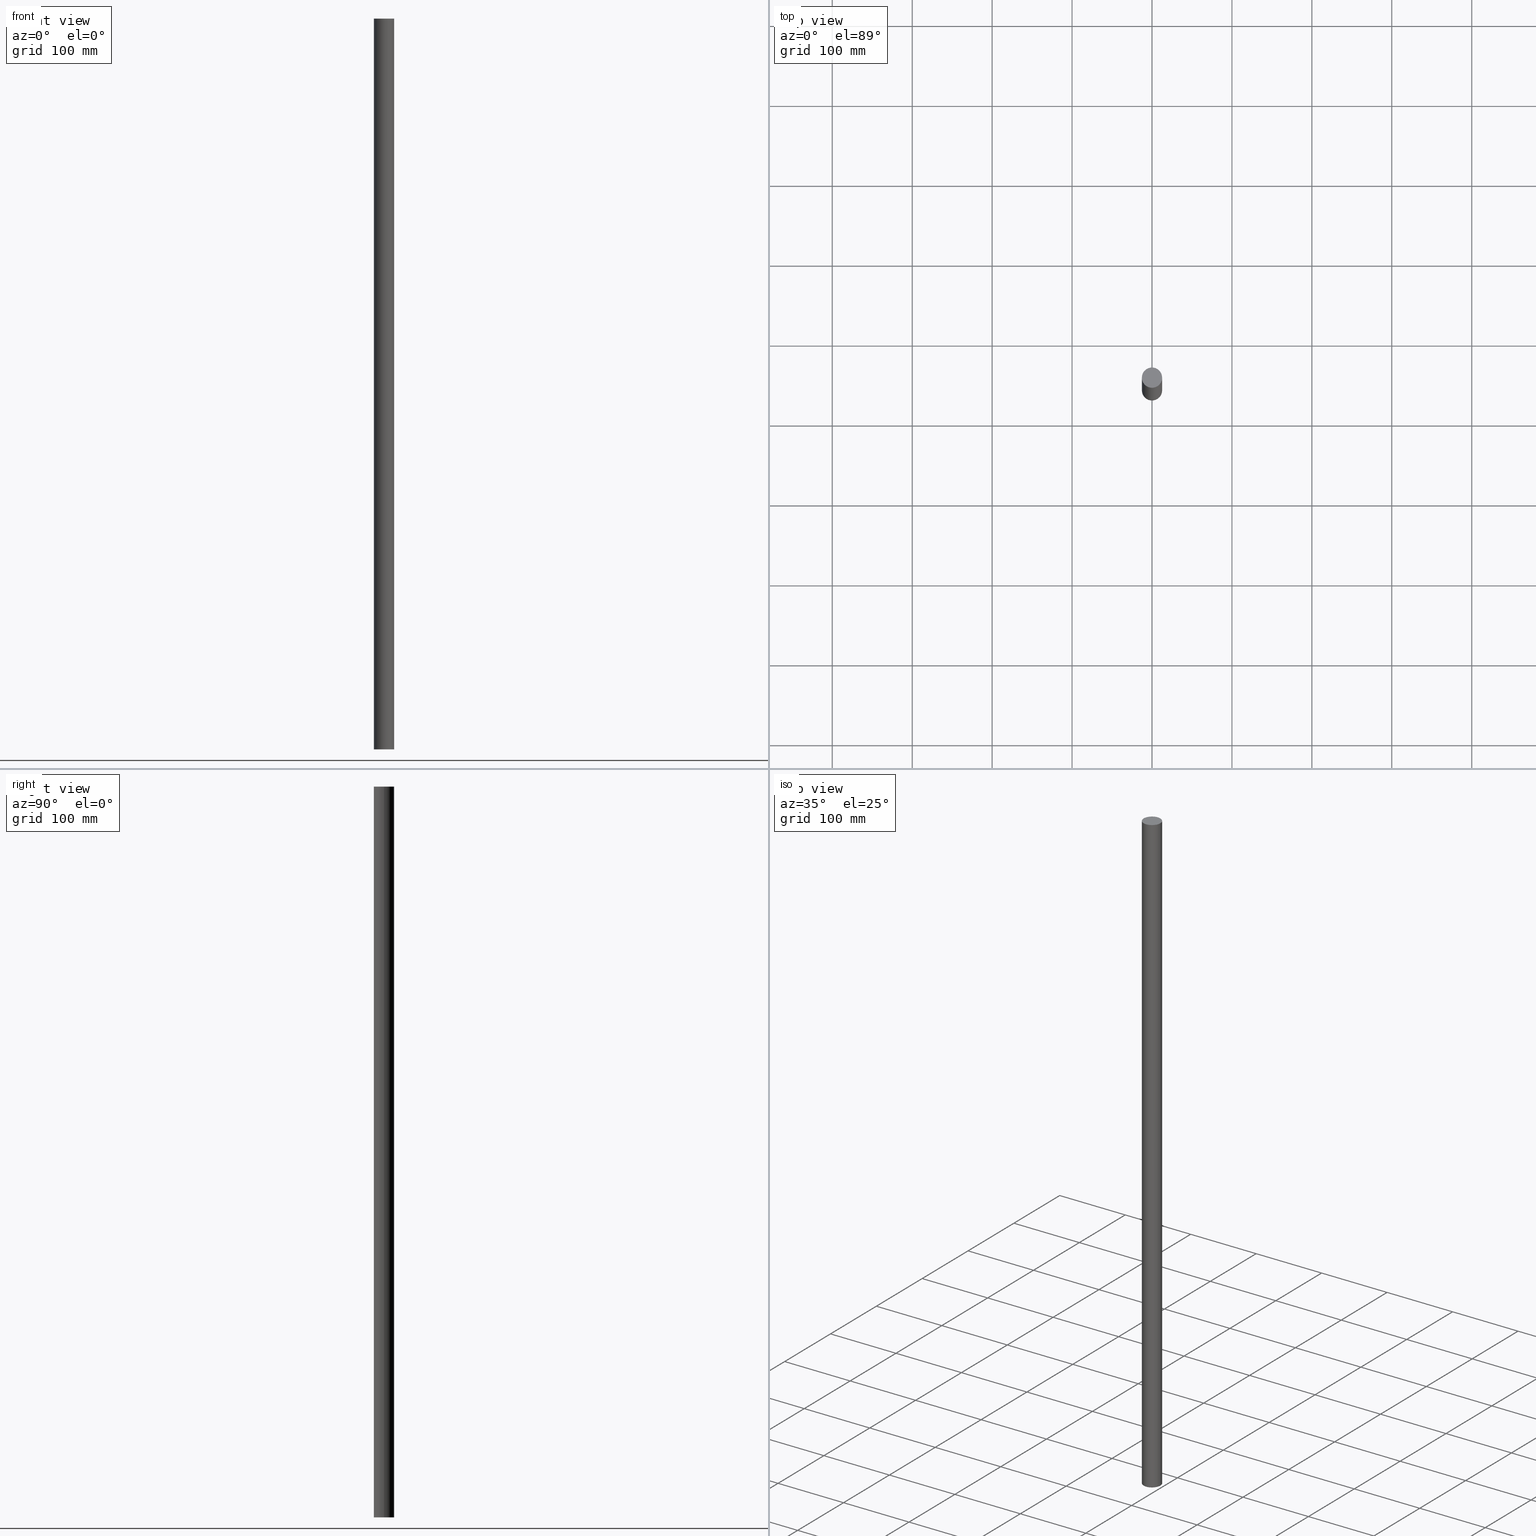
[diagram: canonical four-view strip — front | top / right | iso, engineering-drawing reading convention]
A machine part, canonical four-view strip (front | top / right | iso — engineering-drawing reading convention). The complete STEP part file that produces these views, byte-faithful:
ISO-10303-21;
HEADER;
FILE_DESCRIPTION (( 'STEP AP214' ),
    '1' );
FILE_NAME ('ShaftRailAssembly_03785CEBE2.step',
    '2021-12-06T19:20:29',
    ( 'localadmin' ),
    ( 'BOXX Technologies, Inc.' ),
    'SwSTEP 2.0',
    'SolidWorks 2019',
    '' );
FILE_SCHEMA (( 'AUTOMOTIVE_DESIGN' ));
ENDSEC;

DATA;
#1 = PRESENTATION_LAYER_ASSIGNMENT (  '', '', ( #141 ) ) ;
#2 = VERTEX_POINT ( 'NONE', #209 ) ;
#3 = UNCERTAINTY_MEASURE_WITH_UNIT (LENGTH_MEASURE( 1.000000000000000082E-05 ), #237, 'distance_accuracy_value', 'NONE');
#4 = PRODUCT_DEFINITION_SHAPE ( 'NONE', 'NONE',  #276 ) ;
#5 = COLOUR_RGB ( '',0.7764705882352941346, 0.7764705882352941346, 0.8156862745098039102 ) ;
#6 = DIRECTION ( 'NONE',  ( 1.000000000000000000, 0.000000000000000000, 0.000000000000000000 ) ) ;
#7 = PRODUCT_DEFINITION_CONTEXT ( 'detailed design', #171, 'design' ) ;
#8 = APPLICATION_PROTOCOL_DEFINITION ( 'draft international standard', 'automotive_design', 1998, #171 ) ;
#9 =( NAMED_UNIT ( * ) PLANE_ANGLE_UNIT ( ) SI_UNIT ( $, .RADIAN. ) );
#10 = DIRECTION ( 'NONE',  ( 0.000000000000000000, 0.000000000000000000, 1.000000000000000000 ) ) ;
#11 = DIMENSIONAL_EXPONENTS ( 1.000000000000000000, 0.000000000000000000, 0.000000000000000000, 0.000000000000000000, 0.000000000000000000, 0.000000000000000000, 0.000000000000000000 ) ;
#12 =( CONVERSION_BASED_UNIT ( 'INCH', #221 ) LENGTH_UNIT ( ) NAMED_UNIT ( #11 ) );
#13 = SURFACE_SIDE_STYLE ('',( #224 ) ) ;
#14 = AXIS2_PLACEMENT_3D ( 'NONE', #111, #67, #242 ) ;
#15 = CIRCLE ( 'NONE', #72, 0.5000000000000000000 ) ;
#16 = LINE ( 'NONE', #99, #96 ) ;
#17 = FILL_AREA_STYLE_COLOUR ( '', #258 ) ;
#18 = LINE ( 'NONE', #182, #85 ) ;
#19 =( CONVERSION_BASED_UNIT ( 'INCH', #119 ) LENGTH_UNIT ( ) NAMED_UNIT ( #159 ) );
#20 =( LENGTH_UNIT ( ) NAMED_UNIT ( * ) SI_UNIT ( $, .METRE. ) );
#21 =( GEOMETRIC_REPRESENTATION_CONTEXT ( 3 ) GLOBAL_UNCERTAINTY_ASSIGNED_CONTEXT ( ( #25 ) ) GLOBAL_UNIT_ASSIGNED_CONTEXT ( ( #216, #243, #126 ) ) REPRESENTATION_CONTEXT ( 'NONE', 'WORKASPACE' ) );
#22 = EDGE_LOOP ( 'NONE', ( #121, #261, #263, #190 ) ) ;
#23 = EDGE_CURVE ( 'NONE', #2, #41, #18, .T. ) ;
#24 = UNCERTAINTY_MEASURE_WITH_UNIT (LENGTH_MEASURE( 1.000000000000000082E-05 ), #19, 'distance_accuracy_value', 'NONE');
#25 = UNCERTAINTY_MEASURE_WITH_UNIT (LENGTH_MEASURE( 1.000000000000000082E-05 ), #216, 'distance_accuracy_value', 'NONE');
#26 = COLOUR_RGB ( '',0.8980392156862745390, 0.9176470588235293713, 0.9294117647058823817 ) ;
#27 = PRODUCT ( '0Y2AZEdqse_CADModel_0', '0Y2AZEdqse_CADModel_0', '', ( #179 ) ) ;
#28 = LENGTH_MEASURE_WITH_UNIT ( LENGTH_MEASURE( 0.02539999999999999897 ), #251 );
#29 = SHAPE_DEFINITION_REPRESENTATION ( #146, #168 ) ;
#30 = FILL_AREA_STYLE ('',( #177 ) ) ;
#31 = CARTESIAN_POINT ( 'NONE',  ( 0.000000000000000000, 1.750000000000000000, -36.00000000000000000 ) ) ;
#32 = DIRECTION ( 'NONE',  ( 1.000000000000000000, 0.000000000000000000, 0.000000000000000000 ) ) ;
#33 = MECHANICAL_DESIGN_GEOMETRIC_PRESENTATION_REPRESENTATION (  '', ( #100 ), #21 ) ;
#34 = SURFACE_STYLE_USAGE ( .BOTH. , #13 ) ;
#35 = FILL_AREA_STYLE_COLOUR ( '', #158 ) ;
#36 = CLOSED_SHELL ( 'NONE', ( #267, #246, #80, #40 ) ) ;
#37 = SURFACE_STYLE_USAGE ( .BOTH. , #273 ) ;
#38 =( GEOMETRIC_REPRESENTATION_CONTEXT ( 3 ) GLOBAL_UNCERTAINTY_ASSIGNED_CONTEXT ( ( #3 ) ) GLOBAL_UNIT_ASSIGNED_CONTEXT ( ( #237, #106, #108 ) ) REPRESENTATION_CONTEXT ( 'NONE', 'WORKASPACE' ) );
#39 = SHAPE_REPRESENTATION ( 'ShaftRailAssembly_03785CEBE2', ( #240, #229 ), #38 ) ;
#40 = ADVANCED_FACE ( 'NONE', ( #231 ), #183, .T. ) ;
#41 = VERTEX_POINT ( 'NONE', #249 ) ;
#42 = SURFACE_STYLE_FILL_AREA ( #187 ) ;
#43 = COLOUR_RGB ( '',0.7764705882352941346, 0.7764705882352941346, 0.8156862745098039102 ) ;
#44 = APPLICATION_CONTEXT ( 'automotive_design' ) ;
#45 = EDGE_LOOP ( 'NONE', ( #236, #234 ) ) ;
#46 = DIRECTION ( 'NONE',  ( 1.000000000000000000, 0.000000000000000000, 0.000000000000000000 ) ) ;
#47 = DIRECTION ( 'NONE',  ( 0.000000000000000000, 0.000000000000000000, 1.000000000000000000 ) ) ;
#48 = ADVANCED_BREP_SHAPE_REPRESENTATION ( '', ( #142, #192 ), #109 ) ;
#49 = UNCERTAINTY_MEASURE_WITH_UNIT (LENGTH_MEASURE( 1.000000000000000082E-05 ), #265, 'distance_accuracy_value', 'NONE');
#50 = PRESENTATION_LAYER_ASSIGNMENT (  '', '', ( #176 ) ) ;
#51 = AXIS2_PLACEMENT_3D ( 'NONE', #180, #195, #129 ) ;
#52 =( NAMED_UNIT ( * ) SI_UNIT ( $, .STERADIAN. ) SOLID_ANGLE_UNIT ( ) );
#53 = CONTEXT_DEPENDENT_SHAPE_REPRESENTATION ( #259, #4 ) ;
#54 = CARTESIAN_POINT ( 'NONE',  ( 0.000000000000000000, 1.750000000000000000, -36.00000000000000000 ) ) ;
#55 =( CONVERSION_BASED_UNIT ( 'INCH', #252 ) LENGTH_UNIT ( ) NAMED_UNIT ( #164 ) );
#56 = CARTESIAN_POINT ( 'NONE',  ( 0.000000000000000000, 1.750000000000000000, 0.000000000000000000 ) ) ;
#57 = FILL_AREA_STYLE_COLOUR ( '', #43 ) ;
#58 = CIRCLE ( 'NONE', #253, 0.5000000000000000000 ) ;
#59 = SURFACE_STYLE_FILL_AREA ( #247 ) ;
#60 = PRESENTATION_LAYER_ASSIGNMENT (  '', '', ( #174 ) ) ;
#61 =( NAMED_UNIT ( * ) SI_UNIT ( $, .STERADIAN. ) SOLID_ANGLE_UNIT ( ) );
#62 = MECHANICAL_DESIGN_GEOMETRIC_PRESENTATION_REPRESENTATION (  '', ( #176 ), #213 ) ;
#63 = AXIS2_PLACEMENT_3D ( 'NONE', #56, #178, #97 ) ;
#64 = CARTESIAN_POINT ( 'NONE',  ( 0.000000000000000000, 0.000000000000000000, 0.000000000000000000 ) ) ;
#65 =( NAMED_UNIT ( * ) PLANE_ANGLE_UNIT ( ) SI_UNIT ( $, .RADIAN. ) );
#66 = MECHANICAL_DESIGN_GEOMETRIC_PRESENTATION_REPRESENTATION (  '', ( #141 ), #117 ) ;
#67 = DIRECTION ( 'NONE',  ( 0.000000000000000000, 0.000000000000000000, 1.000000000000000000 ) ) ;
#68 = CARTESIAN_POINT ( 'NONE',  ( 0.000000000000000000, 1.750000000000000000, -36.00000000000000000 ) ) ;
#69 = DIRECTION ( 'NONE',  ( 0.000000000000000000, 0.000000000000000000, 1.000000000000000000 ) ) ;
#70 = PRODUCT_DEFINITION_SHAPE ( 'NONE', 'NONE',  #77 ) ;
#71 = AXIS2_PLACEMENT_3D ( 'NONE', #54, #10, #128 ) ;
#72 = AXIS2_PLACEMENT_3D ( 'NONE', #131, #69, #151 ) ;
#73 = DIRECTION ( 'NONE',  ( 1.000000000000000000, 0.000000000000000000, 0.000000000000000000 ) ) ;
#74 = PRESENTATION_STYLE_ASSIGNMENT (( #34 ) ) ;
#75 = CARTESIAN_POINT ( 'NONE',  ( 0.000000000000000000, 1.750000000000000000, 0.000000000000000000 ) ) ;
#76 = PRESENTATION_STYLE_ASSIGNMENT (( #225 ) ) ;
#77 = PRODUCT_DEFINITION ( 'UNKNOWN', '', #212, #86 ) ;
#78 =( NAMED_UNIT ( * ) SI_UNIT ( $, .STERADIAN. ) SOLID_ANGLE_UNIT ( ) );
#79 = CIRCLE ( 'NONE', #266, 0.5000000000000000000 ) ;
#80 = ADVANCED_FACE ( 'NONE', ( #270 ), #255, .F. ) ;
#81 = UNCERTAINTY_MEASURE_WITH_UNIT (LENGTH_MEASURE( 1.000000000000000082E-05 ), #55, 'distance_accuracy_value', 'NONE');
#82 = ORIENTED_EDGE ( 'NONE', *, *, #118, .T. ) ;
#83 = ORIENTED_EDGE ( 'NONE', *, *, #205, .F. ) ;
#84 = SURFACE_STYLE_USAGE ( .BOTH. , #122 ) ;
#85 = VECTOR ( 'NONE', #203, 39.37007874015748143 ) ;
#86 = PRODUCT_DEFINITION_CONTEXT ( 'detailed design', #235, 'design' ) ;
#87 = APPLICATION_CONTEXT ( 'automotive_design' ) ;
#88 = EDGE_CURVE ( 'NONE', #41, #137, #15, .T. ) ;
#89 = ITEM_DEFINED_TRANSFORMATION ( 'NONE', 'NONE', #229,  #192 ) ;
#90 = APPLICATION_PROTOCOL_DEFINITION ( 'draft international standard', 'automotive_design', 1998, #204 ) ;
#91 = PRODUCT_DEFINITION_FORMATION_WITH_SPECIFIED_SOURCE ( 'ANY', '', #254, .NOT_KNOWN. ) ;
#92 = SURFACE_STYLE_FILL_AREA ( #30 ) ;
#93 =( NAMED_UNIT ( * ) PLANE_ANGLE_UNIT ( ) SI_UNIT ( $, .RADIAN. ) );
#94 = DIRECTION ( 'NONE',  ( 0.000000000000000000, 0.000000000000000000, 1.000000000000000000 ) ) ;
#95 =( NAMED_UNIT ( * ) PLANE_ANGLE_UNIT ( ) SI_UNIT ( $, .RADIAN. ) );
#96 = VECTOR ( 'NONE', #268, 39.37007874015748143 ) ;
#97 = DIRECTION ( 'NONE',  ( 1.000000000000000000, 0.000000000000000000, -0.000000000000000000 ) ) ;
#98 = DIRECTION ( 'NONE',  ( 1.000000000000000000, 0.000000000000000000, 0.000000000000000000 ) ) ;
#99 = CARTESIAN_POINT ( 'NONE',  ( -0.5000000000000000000, 1.750000000000000000, -36.00000000000000000 ) ) ;
#100 = STYLED_ITEM ( 'NONE', ( #143 ), #267 ) ;
#101 = LENGTH_MEASURE_WITH_UNIT ( LENGTH_MEASURE( 0.02539999999999999897 ), #124 );
#102 = APPLICATION_CONTEXT ( 'automotive_design' ) ;
#103 = UNCERTAINTY_MEASURE_WITH_UNIT (LENGTH_MEASURE( 1.000000000000000082E-05 ), #12, 'distance_accuracy_value', 'NONE');
#104 = PRODUCT_RELATED_PRODUCT_CATEGORY ( 'part', '', ( #271 ) ) ;
#105 = EDGE_LOOP ( 'NONE', ( #162, #82, #207, #184 ) ) ;
#106 =( NAMED_UNIT ( * ) PLANE_ANGLE_UNIT ( ) SI_UNIT ( $, .RADIAN. ) );
#107 = COLOUR_RGB ( '',0.7764705882352941346, 0.7764705882352941346, 0.8156862745098039102 ) ;
#108 =( NAMED_UNIT ( * ) SI_UNIT ( $, .STERADIAN. ) SOLID_ANGLE_UNIT ( ) );
#109 =( GEOMETRIC_REPRESENTATION_CONTEXT ( 3 ) GLOBAL_UNCERTAINTY_ASSIGNED_CONTEXT ( ( #103 ) ) GLOBAL_UNIT_ASSIGNED_CONTEXT ( ( #12, #95, #78 ) ) REPRESENTATION_CONTEXT ( 'NONE', 'WORKASPACE' ) );
#110 = SURFACE_SIDE_STYLE ('',( #92 ) ) ;
#111 = CARTESIAN_POINT ( 'NONE',  ( 0.000000000000000000, 0.000000000000000000, 0.000000000000000000 ) ) ;
#112 = APPLICATION_PROTOCOL_DEFINITION ( 'draft international standard', 'automotive_design', 1998, #102 ) ;
#113 =( LENGTH_UNIT ( ) NAMED_UNIT ( * ) SI_UNIT ( $, .METRE. ) );
#114 = FACE_OUTER_BOUND ( 'NONE', #22, .T. ) ;
#115 = STYLED_ITEM ( 'NONE', ( #175 ), #246 ) ;
#116 = SURFACE_SIDE_STYLE ('',( #154 ) ) ;
#117 =( GEOMETRIC_REPRESENTATION_CONTEXT ( 3 ) GLOBAL_UNCERTAINTY_ASSIGNED_CONTEXT ( ( #81 ) ) GLOBAL_UNIT_ASSIGNED_CONTEXT ( ( #55, #93, #222 ) ) REPRESENTATION_CONTEXT ( 'NONE', 'WORKASPACE' ) );
#118 = EDGE_CURVE ( 'NONE', #123, #137, #16, .T. ) ;
#119 = LENGTH_MEASURE_WITH_UNIT ( LENGTH_MEASURE( 0.02539999999999999897 ), #133 );
#120 = DIRECTION ( 'NONE',  ( 1.000000000000000000, 0.000000000000000000, 0.000000000000000000 ) ) ;
#121 = ORIENTED_EDGE ( 'NONE', *, *, #118, .F. ) ;
#122 = SURFACE_SIDE_STYLE ('',( #42 ) ) ;
#123 = VERTEX_POINT ( 'NONE', #147 ) ;
#124 =( LENGTH_UNIT ( ) NAMED_UNIT ( * ) SI_UNIT ( $, .METRE. ) );
#125 = PRODUCT_DEFINITION_FORMATION_WITH_SPECIFIED_SOURCE ( 'ANY', '', #27, .NOT_KNOWN. ) ;
#126 =( NAMED_UNIT ( * ) SI_UNIT ( $, .STERADIAN. ) SOLID_ANGLE_UNIT ( ) );
#127 = CARTESIAN_POINT ( 'NONE',  ( 0.000000000000000000, 0.000000000000000000, 0.000000000000000000 ) ) ;
#128 = DIRECTION ( 'NONE',  ( 1.000000000000000000, 0.000000000000000000, 0.000000000000000000 ) ) ;
#129 = DIRECTION ( 'NONE',  ( 1.000000000000000000, 0.000000000000000000, -0.000000000000000000 ) ) ;
#130 =( NAMED_UNIT ( * ) SI_UNIT ( $, .STERADIAN. ) SOLID_ANGLE_UNIT ( ) );
#131 = CARTESIAN_POINT ( 'NONE',  ( 0.000000000000000000, 1.750000000000000000, 0.000000000000000000 ) ) ;
#132 = LENGTH_MEASURE_WITH_UNIT ( LENGTH_MEASURE( 0.02539999999999999897 ), #219 );
#133 =( LENGTH_UNIT ( ) NAMED_UNIT ( * ) SI_UNIT ( $, .METRE. ) );
#134 = PRODUCT_RELATED_PRODUCT_CATEGORY ( 'part', '', ( #254 ) ) ;
#135 = FILL_AREA_STYLE_COLOUR ( '', #26 ) ;
#136 = DIMENSIONAL_EXPONENTS ( 1.000000000000000000, 0.000000000000000000, 0.000000000000000000, 0.000000000000000000, 0.000000000000000000, 0.000000000000000000, 0.000000000000000000 ) ;
#137 = VERTEX_POINT ( 'NONE', #256 ) ;
#138 = DIRECTION ( 'NONE',  ( 0.000000000000000000, 0.000000000000000000, 1.000000000000000000 ) ) ;
#139 = EDGE_LOOP ( 'NONE', ( #83, #160 ) ) ;
#140 = AXIS2_PLACEMENT_3D ( 'NONE', #68, #145, #6 ) ;
#141 = STYLED_ITEM ( 'NONE', ( #74 ), #80 ) ;
#142 = MANIFOLD_SOLID_BREP ( 'S0_a_shaft-1/S0_a_shaft-1-solid1', #36 ) ;
#143 = PRESENTATION_STYLE_ASSIGNMENT (( #245 ) ) ;
#144 = SHAPE_DEFINITION_REPRESENTATION ( #70, #39 ) ;
#145 = DIRECTION ( 'NONE',  ( 0.000000000000000000, 0.000000000000000000, 1.000000000000000000 ) ) ;
#146 = PRODUCT_DEFINITION_SHAPE ( 'NONE', 'NONE',  #170 ) ;
#147 = CARTESIAN_POINT ( 'NONE',  ( -0.5000000000000000000, 1.750000000000000000, -36.00000000000000000 ) ) ;
#148 = LENGTH_MEASURE_WITH_UNIT ( LENGTH_MEASURE( 0.02539999999999999897 ), #150 );
#149 = FILL_AREA_STYLE ('',( #17 ) ) ;
#150 =( LENGTH_UNIT ( ) NAMED_UNIT ( * ) SI_UNIT ( $, .METRE. ) );
#151 = DIRECTION ( 'NONE',  ( 1.000000000000000000, 0.000000000000000000, 0.000000000000000000 ) ) ;
#152 = PRESENTATION_LAYER_ASSIGNMENT (  '', '', ( #100 ) ) ;
#153 =( CONVERSION_BASED_UNIT ( 'INCH', #132 ) LENGTH_UNIT ( ) NAMED_UNIT ( #136 ) );
#154 = SURFACE_STYLE_FILL_AREA ( #269 ) ;
#155 = SURFACE_STYLE_FILL_AREA ( #228 ) ;
#156 = PRESENTATION_STYLE_ASSIGNMENT (( #37 ) ) ;
#157 = AXIS2_PLACEMENT_3D ( 'NONE', #238, #47, #46 ) ;
#158 = COLOUR_RGB ( '',0.8980392156862745390, 0.9176470588235293713, 0.9294117647058823817 ) ;
#159 = DIMENSIONAL_EXPONENTS ( 1.000000000000000000, 0.000000000000000000, 0.000000000000000000, 0.000000000000000000, 0.000000000000000000, 0.000000000000000000, 0.000000000000000000 ) ;
#160 = ORIENTED_EDGE ( 'NONE', *, *, #167, .F. ) ;
#161 = DIRECTION ( 'NONE',  ( 0.000000000000000000, 0.000000000000000000, 1.000000000000000000 ) ) ;
#162 = ORIENTED_EDGE ( 'NONE', *, *, #205, .T. ) ;
#163 = SHAPE_REPRESENTATION_RELATIONSHIP ( 'NONE' , 'NONE' ,  #168, #48 ) ;
#164 = DIMENSIONAL_EXPONENTS ( 1.000000000000000000, 0.000000000000000000, 0.000000000000000000, 0.000000000000000000, 0.000000000000000000, 0.000000000000000000, 0.000000000000000000 ) ;
#165 = PRESENTATION_STYLE_ASSIGNMENT (( #84 ) ) ;
#166 = DIMENSIONAL_EXPONENTS ( 1.000000000000000000, 0.000000000000000000, 0.000000000000000000, 0.000000000000000000, 0.000000000000000000, 0.000000000000000000, 0.000000000000000000 ) ;
#167 = EDGE_CURVE ( 'NONE', #123, #2, #197, .T. ) ;
#168 = SHAPE_REPRESENTATION ( '0Y2AZEdqse_CADModel_0', ( #192 ), #109 ) ;
#169 = AXIS2_PLACEMENT_3D ( 'NONE', #272, #94, #98 ) ;
#170 = PRODUCT_DEFINITION ( 'UNKNOWN', '', #125, #214 ) ;
#171 = APPLICATION_CONTEXT ( 'automotive_design' ) ;
#172 =( CONVERSION_BASED_UNIT ( 'INCH', #148 ) LENGTH_UNIT ( ) NAMED_UNIT ( #232 ) );
#173 = CYLINDRICAL_SURFACE ( 'NONE', #140, 0.5000000000000000000 ) ;
#174 = STYLED_ITEM ( 'NONE', ( #156 ), #40 ) ;
#175 = PRESENTATION_STYLE_ASSIGNMENT (( #198 ) ) ;
#176 = STYLED_ITEM ( 'NONE', ( #165 ), #48 ) ;
#177 = FILL_AREA_STYLE_COLOUR ( '', #5 ) ;
#178 = DIRECTION ( 'NONE',  ( 0.000000000000000000, 0.000000000000000000, 1.000000000000000000 ) ) ;
#179 = PRODUCT_CONTEXT ( 'NONE', #102, 'mechanical' ) ;
#180 = CARTESIAN_POINT ( 'NONE',  ( 0.000000000000000000, 1.750000000000000000, -36.00000000000000000 ) ) ;
#181 = DIRECTION ( 'NONE',  ( 1.000000000000000000, 0.000000000000000000, 0.000000000000000000 ) ) ;
#182 = CARTESIAN_POINT ( 'NONE',  ( 0.5000000000000000000, 1.750000000000000000, -36.00000000000000000 ) ) ;
#183 = PLANE ( 'NONE',  #63 ) ;
#184 = ORIENTED_EDGE ( 'NONE', *, *, #23, .F. ) ;
#185 = MECHANICAL_DESIGN_GEOMETRIC_PRESENTATION_REPRESENTATION (  '', ( #174 ), #241 ) ;
#186 = DIMENSIONAL_EXPONENTS ( 1.000000000000000000, 0.000000000000000000, 0.000000000000000000, 0.000000000000000000, 0.000000000000000000, 0.000000000000000000, 0.000000000000000000 ) ;
#187 = FILL_AREA_STYLE ('',( #135 ) ) ;
#188 = DIMENSIONAL_EXPONENTS ( 1.000000000000000000, 0.000000000000000000, 0.000000000000000000, 0.000000000000000000, 0.000000000000000000, 0.000000000000000000, 0.000000000000000000 ) ;
#189 = UNCERTAINTY_MEASURE_WITH_UNIT (LENGTH_MEASURE( 1.000000000000000082E-05 ), #153, 'distance_accuracy_value', 'NONE');
#190 = ORIENTED_EDGE ( 'NONE', *, *, #210, .F. ) ;
#191 = PRODUCT_DEFINITION ( 'UNKNOWN', '', #91, #7 ) ;
#192 = AXIS2_PLACEMENT_3D ( 'NONE', #64, #138, #120 ) ;
#193 = PRODUCT_DEFINITION_SHAPE ( 'NONE', 'NONE',  #191 ) ;
#194 =( GEOMETRIC_REPRESENTATION_CONTEXT ( 3 ) GLOBAL_UNCERTAINTY_ASSIGNED_CONTEXT ( ( #189 ) ) GLOBAL_UNIT_ASSIGNED_CONTEXT ( ( #153, #227, #130 ) ) REPRESENTATION_CONTEXT ( 'NONE', 'WORKASPACE' ) );
#195 = DIRECTION ( 'NONE',  ( 0.000000000000000000, 0.000000000000000000, 1.000000000000000000 ) ) ;
#196 = CYLINDRICAL_SURFACE ( 'NONE', #71, 0.5000000000000000000 ) ;
#197 = CIRCLE ( 'NONE', #169, 0.5000000000000000000 ) ;
#198 = SURFACE_STYLE_USAGE ( .BOTH. , #116 ) ;
#199 = PRODUCT_CONTEXT ( 'NONE', #87, 'mechanical' ) ;
#200 = STYLED_ITEM ( 'NONE', ( #76 ), #142 ) ;
#201 =( LENGTH_UNIT ( ) NAMED_UNIT ( * ) SI_UNIT ( $, .METRE. ) );
#202 = DIRECTION ( 'NONE',  ( 0.000000000000000000, 0.000000000000000000, 1.000000000000000000 ) ) ;
#203 = DIRECTION ( 'NONE',  ( 0.000000000000000000, 0.000000000000000000, 1.000000000000000000 ) ) ;
#204 = APPLICATION_CONTEXT ( 'automotive_design' ) ;
#205 = EDGE_CURVE ( 'NONE', #2, #123, #79, .T. ) ;
#206 = MECHANICAL_DESIGN_GEOMETRIC_PRESENTATION_REPRESENTATION (  '', ( #115 ), #275 ) ;
#207 = ORIENTED_EDGE ( 'NONE', *, *, #88, .F. ) ;
#208 =( NAMED_UNIT ( * ) SI_UNIT ( $, .STERADIAN. ) SOLID_ANGLE_UNIT ( ) );
#209 = CARTESIAN_POINT ( 'NONE',  ( 0.5000000000000000000, 1.750000000000000000, -36.00000000000000000 ) ) ;
#210 = EDGE_CURVE ( 'NONE', #137, #41, #58, .T. ) ;
#211 = DIRECTION ( 'NONE',  ( 1.000000000000000000, 0.000000000000000000, 0.000000000000000000 ) ) ;
#212 = PRODUCT_DEFINITION_FORMATION_WITH_SPECIFIED_SOURCE ( 'ANY', '', #271, .NOT_KNOWN. ) ;
#213 =( GEOMETRIC_REPRESENTATION_CONTEXT ( 3 ) GLOBAL_UNCERTAINTY_ASSIGNED_CONTEXT ( ( #49 ) ) GLOBAL_UNIT_ASSIGNED_CONTEXT ( ( #265, #65, #208 ) ) REPRESENTATION_CONTEXT ( 'NONE', 'WORKASPACE' ) );
#214 = PRODUCT_DEFINITION_CONTEXT ( 'detailed design', #204, 'design' ) ;
#215 = APPLICATION_PROTOCOL_DEFINITION ( 'draft international standard', 'automotive_design', 1998, #235 ) ;
#216 =( CONVERSION_BASED_UNIT ( 'INCH', #28 ) LENGTH_UNIT ( ) NAMED_UNIT ( #186 ) );
#217 = PRODUCT_CONTEXT ( 'NONE', #44, 'mechanical' ) ;
#218 = DIRECTION ( 'NONE',  ( 0.000000000000000000, 0.000000000000000000, 1.000000000000000000 ) ) ;
#219 =( LENGTH_UNIT ( ) NAMED_UNIT ( * ) SI_UNIT ( $, .METRE. ) );
#220 = APPLICATION_PROTOCOL_DEFINITION ( 'draft international standard', 'automotive_design', 1998, #87 ) ;
#221 = LENGTH_MEASURE_WITH_UNIT ( LENGTH_MEASURE( 0.02539999999999999897 ), #113 );
#222 =( NAMED_UNIT ( * ) SI_UNIT ( $, .STERADIAN. ) SOLID_ANGLE_UNIT ( ) );
#223 = DIRECTION ( 'NONE',  ( 0.000000000000000000, 0.000000000000000000, 1.000000000000000000 ) ) ;
#224 = SURFACE_STYLE_FILL_AREA ( #149 ) ;
#225 = SURFACE_STYLE_USAGE ( .BOTH. , #250 ) ;
#226 = MECHANICAL_DESIGN_GEOMETRIC_PRESENTATION_REPRESENTATION (  '', ( #200 ), #194 ) ;
#227 =( NAMED_UNIT ( * ) PLANE_ANGLE_UNIT ( ) SI_UNIT ( $, .RADIAN. ) );
#228 = FILL_AREA_STYLE ('',( #257 ) ) ;
#229 = AXIS2_PLACEMENT_3D ( 'NONE', #264, #161, #211 ) ;
#230 = PRESENTATION_LAYER_ASSIGNMENT (  '', '', ( #200 ) ) ;
#231 = FACE_OUTER_BOUND ( 'NONE', #45, .T. ) ;
#232 = DIMENSIONAL_EXPONENTS ( 1.000000000000000000, 0.000000000000000000, 0.000000000000000000, 0.000000000000000000, 0.000000000000000000, 0.000000000000000000, 0.000000000000000000 ) ;
#233 = LENGTH_MEASURE_WITH_UNIT ( LENGTH_MEASURE( 0.02539999999999999897 ), #20 );
#234 = ORIENTED_EDGE ( 'NONE', *, *, #210, .T. ) ;
#235 = APPLICATION_CONTEXT ( 'automotive_design' ) ;
#236 = ORIENTED_EDGE ( 'NONE', *, *, #88, .T. ) ;
#237 =( CONVERSION_BASED_UNIT ( 'INCH', #233 ) LENGTH_UNIT ( ) NAMED_UNIT ( #166 ) );
#238 = CARTESIAN_POINT ( 'NONE',  ( 0.000000000000000000, 0.000000000000000000, 0.000000000000000000 ) ) ;
#239 = PRESENTATION_LAYER_ASSIGNMENT (  '', '', ( #115 ) ) ;
#240 = AXIS2_PLACEMENT_3D ( 'NONE', #127, #218, #73 ) ;
#241 =( GEOMETRIC_REPRESENTATION_CONTEXT ( 3 ) GLOBAL_UNCERTAINTY_ASSIGNED_CONTEXT ( ( #24 ) ) GLOBAL_UNIT_ASSIGNED_CONTEXT ( ( #19, #274, #61 ) ) REPRESENTATION_CONTEXT ( 'NONE', 'WORKASPACE' ) );
#242 = DIRECTION ( 'NONE',  ( 1.000000000000000000, 0.000000000000000000, 0.000000000000000000 ) ) ;
#243 =( NAMED_UNIT ( * ) PLANE_ANGLE_UNIT ( ) SI_UNIT ( $, .RADIAN. ) );
#244 = APPLICATION_PROTOCOL_DEFINITION ( 'draft international standard', 'automotive_design', 1998, #44 ) ;
#245 = SURFACE_STYLE_USAGE ( .BOTH. , #110 ) ;
#246 = ADVANCED_FACE ( 'NONE', ( #114 ), #173, .T. ) ;
#247 = FILL_AREA_STYLE ('',( #35 ) ) ;
#248 = FACE_OUTER_BOUND ( 'NONE', #105, .T. ) ;
#249 = CARTESIAN_POINT ( 'NONE',  ( 0.5000000000000000000, 1.750000000000000000, 0.000000000000000000 ) ) ;
#250 = SURFACE_SIDE_STYLE ('',( #59 ) ) ;
#251 =( LENGTH_UNIT ( ) NAMED_UNIT ( * ) SI_UNIT ( $, .METRE. ) );
#252 = LENGTH_MEASURE_WITH_UNIT ( LENGTH_MEASURE( 0.02539999999999999897 ), #201 );
#253 = AXIS2_PLACEMENT_3D ( 'NONE', #75, #202, #181 ) ;
#254 = PRODUCT ( '0Y2AZEdqse_CADModel_0', '0Y2AZEdqse_CADModel_0', '', ( #217 ) ) ;
#255 = PLANE ( 'NONE',  #51 ) ;
#256 = CARTESIAN_POINT ( 'NONE',  ( -0.5000000000000000000, 1.750000000000000000, 0.000000000000000000 ) ) ;
#257 = FILL_AREA_STYLE_COLOUR ( '', #107 ) ;
#258 = COLOUR_RGB ( '',0.7764705882352941346, 0.7764705882352941346, 0.8156862745098039102 ) ;
#259 =( REPRESENTATION_RELATIONSHIP ('NONE','NONE', #39, #168 ) REPRESENTATION_RELATIONSHIP_WITH_TRANSFORMATION ( #89 )SHAPE_REPRESENTATION_RELATIONSHIP( ) );
#260 = UNCERTAINTY_MEASURE_WITH_UNIT (LENGTH_MEASURE( 1.000000000000000082E-05 ), #172, 'distance_accuracy_value', 'NONE');
#261 = ORIENTED_EDGE ( 'NONE', *, *, #167, .T. ) ;
#262 = PRODUCT_RELATED_PRODUCT_CATEGORY ( 'part', '', ( #27 ) ) ;
#263 = ORIENTED_EDGE ( 'NONE', *, *, #23, .T. ) ;
#264 = CARTESIAN_POINT ( 'NONE',  ( 0.000000000000000000, 0.000000000000000000, 0.000000000000000000 ) ) ;
#265 =( CONVERSION_BASED_UNIT ( 'INCH', #101 ) LENGTH_UNIT ( ) NAMED_UNIT ( #188 ) );
#266 = AXIS2_PLACEMENT_3D ( 'NONE', #31, #223, #32 ) ;
#267 = ADVANCED_FACE ( 'NONE', ( #248 ), #196, .T. ) ;
#268 = DIRECTION ( 'NONE',  ( 0.000000000000000000, 0.000000000000000000, 1.000000000000000000 ) ) ;
#269 = FILL_AREA_STYLE ('',( #57 ) ) ;
#270 = FACE_OUTER_BOUND ( 'NONE', #139, .T. ) ;
#271 = PRODUCT ( 'ShaftRailAssembly_03785CEBE2', 'ShaftRailAssembly_03785CEBE2', '', ( #199 ) ) ;
#272 = CARTESIAN_POINT ( 'NONE',  ( 0.000000000000000000, 1.750000000000000000, -36.00000000000000000 ) ) ;
#273 = SURFACE_SIDE_STYLE ('',( #155 ) ) ;
#274 =( NAMED_UNIT ( * ) PLANE_ANGLE_UNIT ( ) SI_UNIT ( $, .RADIAN. ) );
#275 =( GEOMETRIC_REPRESENTATION_CONTEXT ( 3 ) GLOBAL_UNCERTAINTY_ASSIGNED_CONTEXT ( ( #260 ) ) GLOBAL_UNIT_ASSIGNED_CONTEXT ( ( #172, #9, #52 ) ) REPRESENTATION_CONTEXT ( 'NONE', 'WORKASPACE' ) );
#276 = NEXT_ASSEMBLY_USAGE_OCCURRENCE ( 'NAUO1', ' ', ' ', #77, #170, $ ) ;
ENDSEC;
END-ISO-10303-21;
